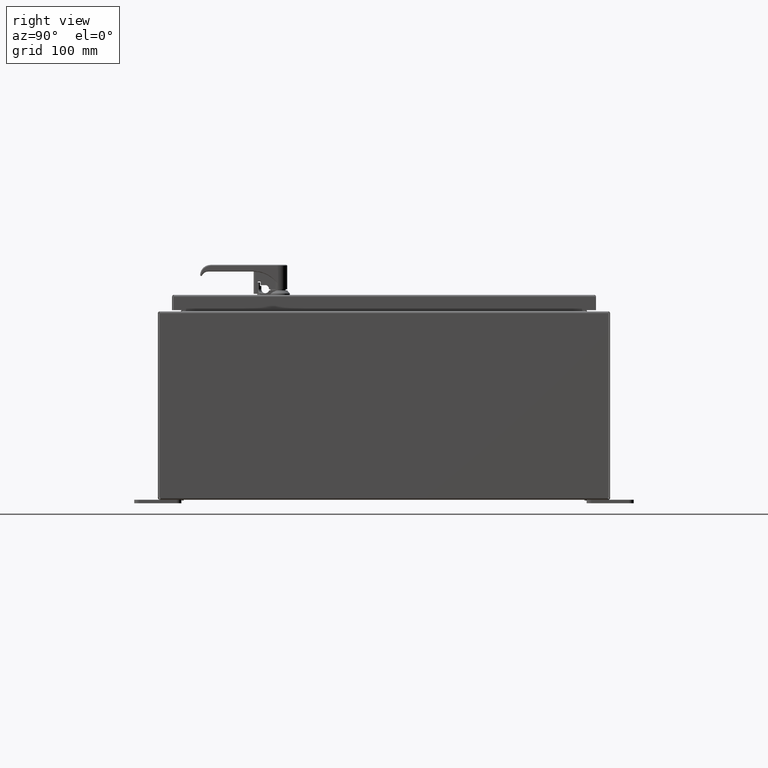
[diagram: clean part render]
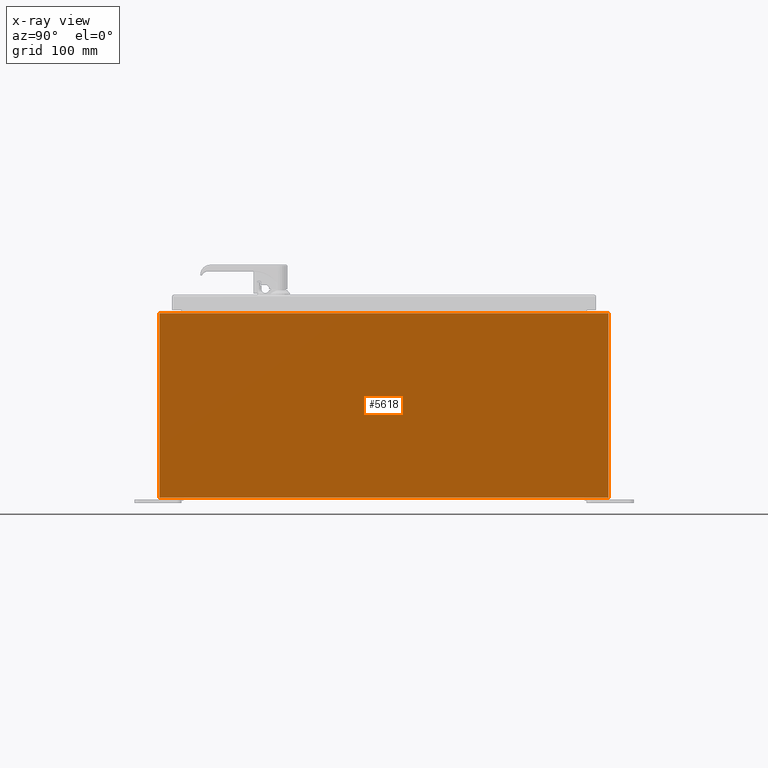
[diagram: x-ray — body ghosted, one internal face saturated and labeled with its STEP entity id]
A machine part, right view, then the same camera in x-ray: the body is ghosted and one INTERNAL B-rep face — a face not visible from any outside direction — is saturated and labeled: STEP entity #5618.
In plain terms, the highlighted planar face has unit normal (1, 0, 0).
Its self-contained STEP definition (entity closure, byte-faithful):
#4995=CARTESIAN_POINT('',(0.074,0.078999999999994,0.114286009042407));
#4996=VERTEX_POINT('',#4995);
#5003=CARTESIAN_POINT('',(0.073999999999999,0.079000000000008,9.894749999999991));
#5004=VERTEX_POINT('',#5003);
#5005=CARTESIAN_POINT('',(0.074,0.078999999999991,9.894749999999991));
#5006=DIRECTION('',(0.0,0.0,-1.0));
#5007=VECTOR('',#5006,9.780463990957584);
#5008=LINE('',#5005,#5007);
#5009=EDGE_CURVE('',#5004,#4996,#5008,.T.);
#5041=CARTESIAN_POINT('',(0.073999999999992,23.921000000000006,9.894749999999998));
#5042=VERTEX_POINT('',#5041);
#5050=CARTESIAN_POINT('',(0.073999999999995,23.920999999999999,0.11428600904242));
#5051=VERTEX_POINT('',#5050);
#5052=CARTESIAN_POINT('',(0.073999999999993,23.920999999999999,0.11428600904242));
#5053=DIRECTION('',(0.0,0.0,1.0));
#5054=VECTOR('',#5053,9.780463990957577);
#5055=LINE('',#5052,#5054);
#5056=EDGE_CURVE('',#5051,#5042,#5055,.T.);
#5091=CARTESIAN_POINT('',(0.073999999999992,23.921000000000006,9.894749999999998));
#5092=DIRECTION('',(0.0,-1.0,0.0));
#5093=VECTOR('',#5092,23.841999999999999);
#5094=LINE('',#5091,#5093);
#5095=EDGE_CURVE('',#5042,#5004,#5094,.T.);
#5433=CARTESIAN_POINT('',(0.073999999999993,23.901103610729439,0.10525));
#5434=VERTEX_POINT('',#5433);
#5451=CARTESIAN_POINT('',(0.073999999999993,23.939642516630336,0.046814114347757));
#5452=DIRECTION('',(-1.0,0.0,0.0));
#5453=DIRECTION('',(0.0,0.0,-1.0));
#5454=AXIS2_PLACEMENT_3D('',#5451,#5452,#5453);
#5455=CIRCLE('',#5454,0.07);
#5456=EDGE_CURVE('',#5434,#5051,#5455,.T.);
#5466=CARTESIAN_POINT('',(0.074,0.098896389270535,0.10525));
#5467=VERTEX_POINT('',#5466);
#5468=CARTESIAN_POINT('',(0.074,0.098896389270536,0.10525));
#5469=DIRECTION('',(0.0,1.0,0.0));
#5470=VECTOR('',#5469,23.802207221458907);
#5471=LINE('',#5468,#5470);
#5472=EDGE_CURVE('',#5467,#5434,#5471,.T.);
#5593=CARTESIAN_POINT('',(0.074,0.060357483369661,0.046814114347743));
#5594=DIRECTION('',(-1.0,0.0,0.0));
#5595=DIRECTION('',(0.0,0.0,-1.0));
#5596=AXIS2_PLACEMENT_3D('',#5593,#5594,#5595);
#5597=CIRCLE('',#5596,0.07);
#5598=EDGE_CURVE('',#4996,#5467,#5597,.T.);
#5605=CARTESIAN_POINT('',(0.073999999999996,11.999999999999998,4.965508743193611));
#5606=DIRECTION('',(1.0,0.0,0.0));
#5607=DIRECTION('',(0.0,0.0,-1.0));
#5608=AXIS2_PLACEMENT_3D('',#5605,#5606,#5607);
#5609=PLANE('',#5608);
#5610=ORIENTED_EDGE('',*,*,#5095,.T.);
#5611=ORIENTED_EDGE('',*,*,#5009,.T.);
#5612=ORIENTED_EDGE('',*,*,#5598,.T.);
#5613=ORIENTED_EDGE('',*,*,#5472,.T.);
#5614=ORIENTED_EDGE('',*,*,#5456,.T.);
#5615=ORIENTED_EDGE('',*,*,#5056,.T.);
#5616=EDGE_LOOP('',(#5610,#5611,#5612,#5613,#5614,#5615));
#5617=FACE_OUTER_BOUND('',#5616,.T.);
#5618=ADVANCED_FACE('',(#5617),#5609,.T.);